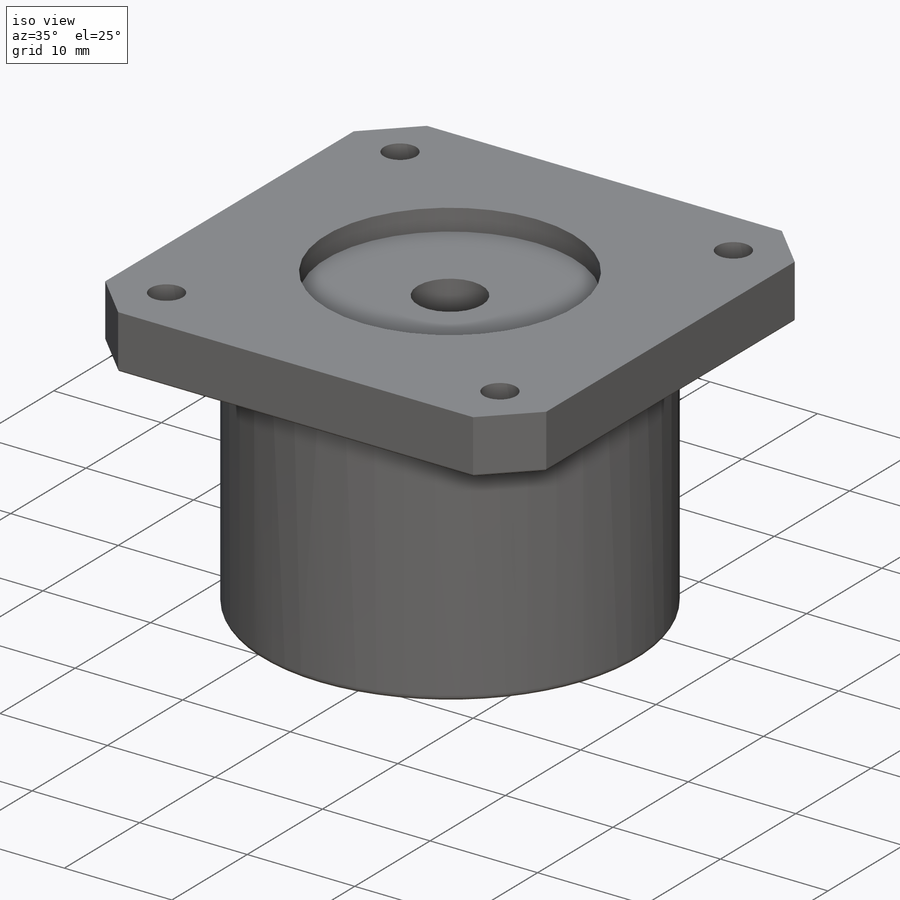
[diagram: iso view]
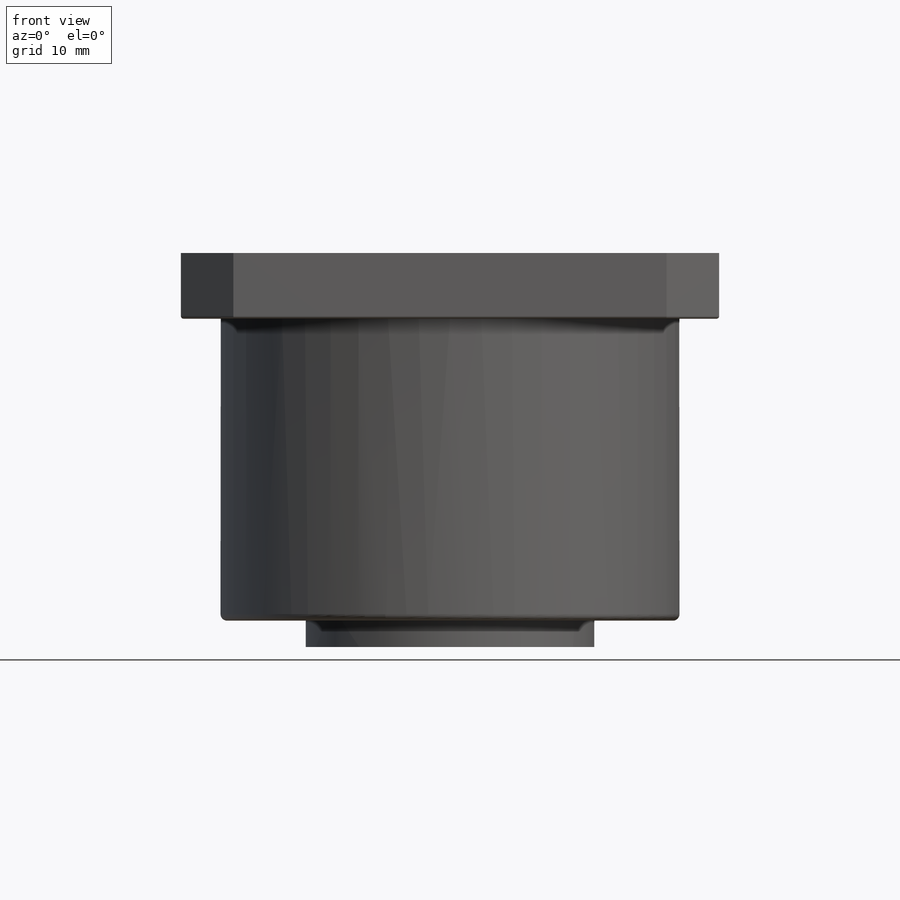
[diagram: front view]
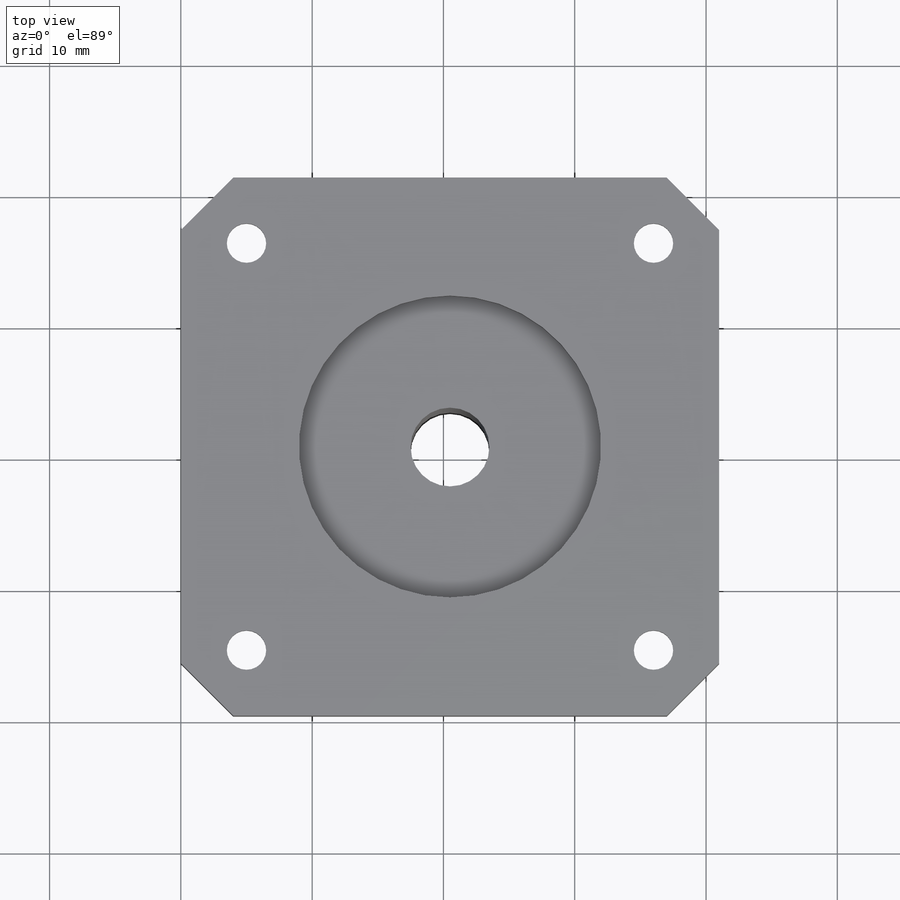
[diagram: top view]
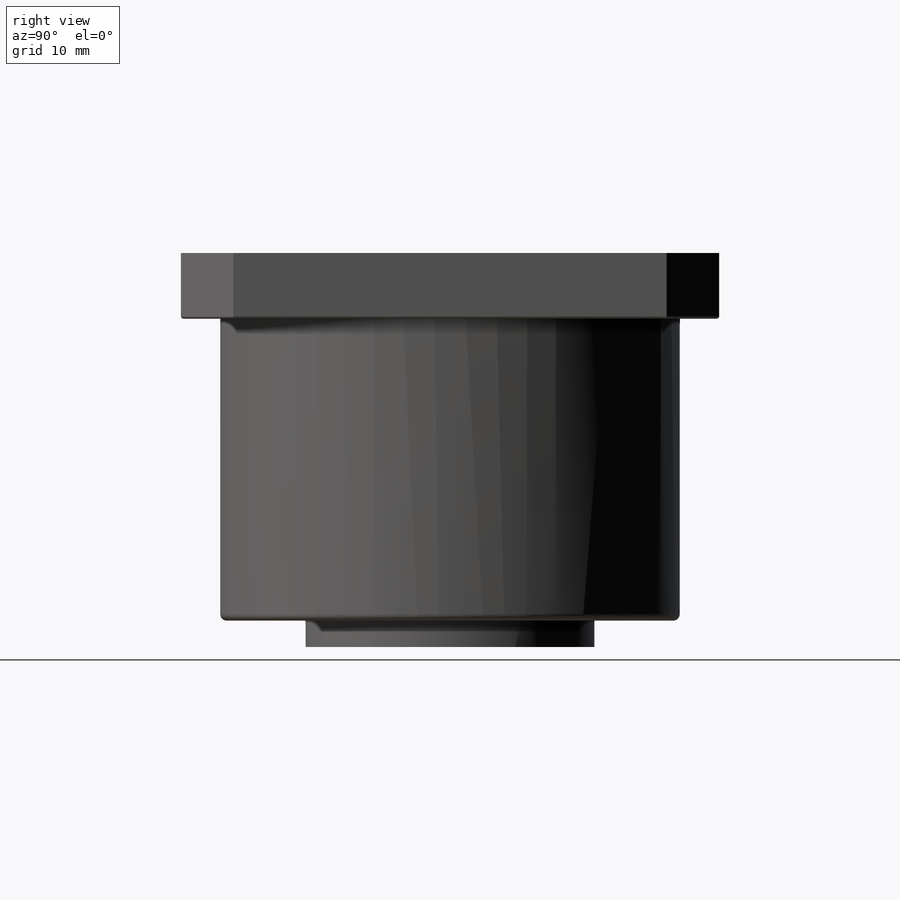
[diagram: right view]
SOLIDWORKS PART (.sldprt)
format: sldprt  version: not decoded by parser v0  size: 408,064 bytes
history: native  units: mm
features: sketch x11, cut_extrude x8, extrude x3, fillet x2, material x1 (+12 scaffold rows collapsed)
feature tree (37):
  scaffold x12  (default folders/planes/origin — collapsed)
  material  "Material <not specified>"
  sketch  "Sketch1"  dims[D1=41.0mm D2=41.0mm]
  extrude  "Boss-Extrude1"  Depth=5mm
  sketch  "Sketch2"  dims[D1=4.0mm D2=4.0mm D3=4.0mm D4=4.0mm D5=4.0mm D6=4.0mm D7=4.0mm D8=4.0mm]
  cut_extrude  "Cut-Extrude2"  Depth=5mm
  sketch  "Sketch4"  dims[D1=23.0mm D2=20.5mm D3=20.5mm]
  cut_extrude  "Cut-Extrude3"  Depth=2mm
  sketch  "Sketch5"  dims[D5=3.0mm D6=6.0mm D1=15.5mm D2=15.5mm]
  sketch  "Sketch6"  dims[D1=35.0mm D2=20.5mm]
  extrude  "Boss-Extrude2"  Depth=23mm
  fillet  "Fillet1"  Radius=0.2mm
  fillet  "Fillet2"  Radius=0.5mm
  sketch  "Sketch13"  dims[D1=22.0mm]
  extrude  "Boss-Extrude3"  Depth=2mm
  cut_extrude  "Cut-Extrude9"  [1 undecoded]
  sketch  "Sketch14"  dims[D2=5.0mm D1=14.0mm D3=4.0]
  sketch  "Sketch15"  dims[c1.D1=3.0mm c1.D2=~2.710505mm c1.D9=3.0mm c2.D1=14.0mm c2.D2=20.3mm c2.D3=20.3mm c2.D4=10.0mm c2.D5=10.0mm c2.D6=10.0mm c2.D7=10.0mm c3.D6=~14.142136mm c3.D9=~14.142136mm c4.D6=90.0deg c4.D8=2.0]
  cut_extrude  "Cut-Extrude10"  Depth=5mm
  cut_extrude  "Cut-Extrude11"  Depth=5mm
  sketch  "Sketch16"  dims[D1=5.0mm D2=~4.713999mm D3=15.5mm D4=15.5mm D5=15.5mm D6=15.5mm D7=2.0]
  cut_extrude  "Cut-Extrude12"  Depth=3mm
  sketch  "Sketch17"  dims[c1.D1=3.0mm c1.D4=3.0mm c1.D2=15.5mm c1.D3=15.5mm c2.D4=15.5mm c2.D5=15.5mm c3.D4=15.5mm c3.D5=2.0]
  cut_extrude  "Cut-Extrude13"  [1 undecoded]
  sketch  "Sketch18"  dims[D1=3.0mm]
  cut_extrude  "Cut-Extrude14"  Depth=5mm
decode coverage: 22 of 24 modeling features carry decoded parameters
note: ~ marks probable driven/reference dimensions
note: 2 parameter values undecoded
note: suppression state not decoded; provenance and decode notes live in map.json
